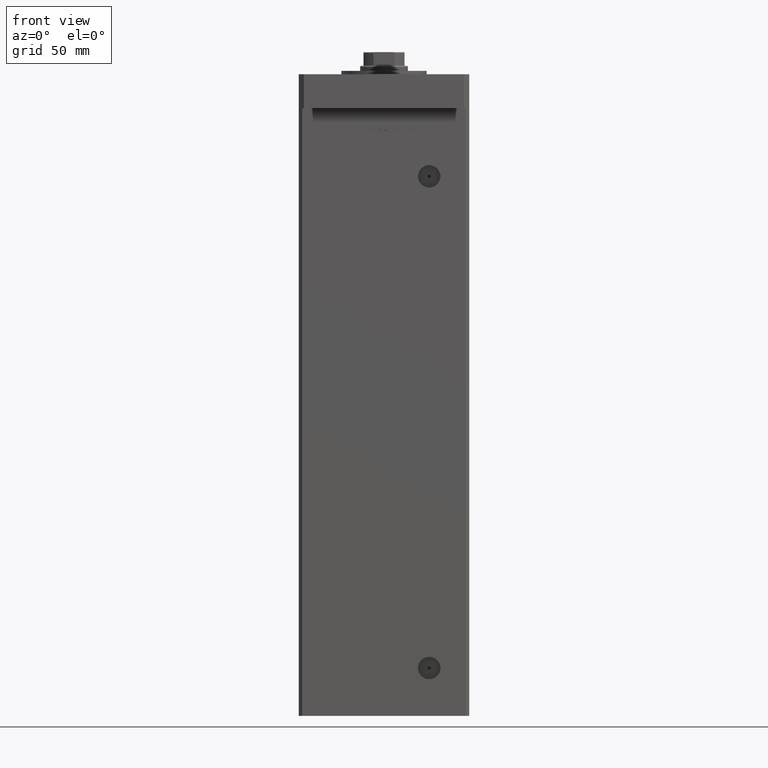
[diagram: clean part render]
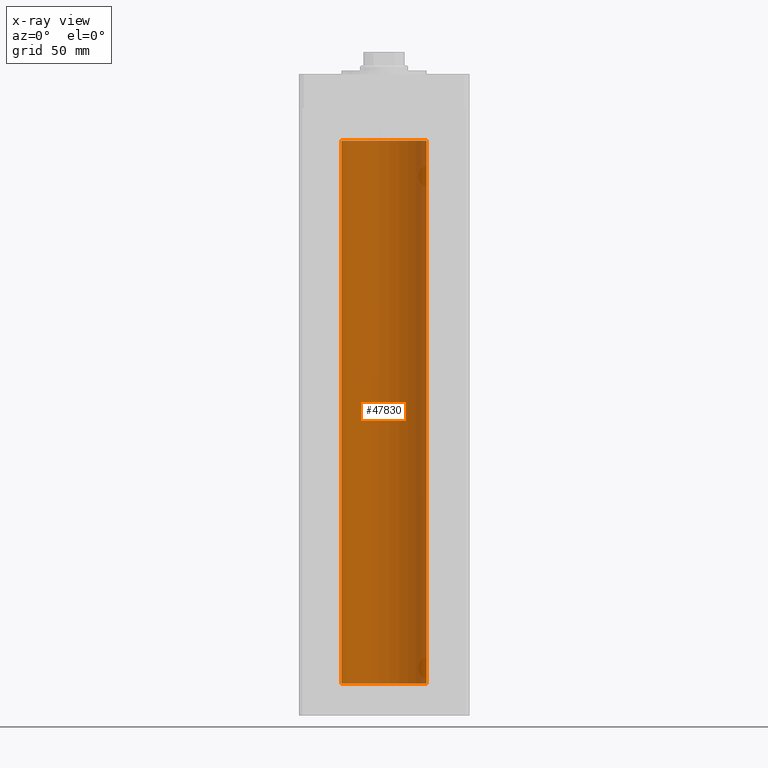
[diagram: x-ray — body ghosted, one internal face saturated and labeled with its STEP entity id]
A machine part, front view, then the same camera in x-ray: the body is ghosted and one INTERNAL B-rep face — a face not visible from any outside direction — is saturated and labeled: STEP entity #47830.
In plain terms, the highlighted cylindrical surface (partial cylindrical patch) has radius 25 mm, axis along (-0, -0, -1).
Its self-contained STEP definition (entity closure, byte-faithful):
#875 = AXIS2_PLACEMENT_3D ( 'NONE', #46854, #22018, #9456 ) ;
#1952 = EDGE_CURVE ( 'NONE', #30899, #21085, #11212, .T. ) ;
#2509 = DIRECTION ( 'NONE',  ( -0.000000000000000000, -0.000000000000000000, -1.000000000000000000 ) ) ;
#3196 = CYLINDRICAL_SURFACE ( 'NONE', #8703, 25.00000000000000000 ) ;
#3530 = EDGE_LOOP ( 'NONE', ( #19201, #32062, #41451, #8768 ) ) ;
#6261 = DIRECTION ( 'NONE',  ( -0.000000000000000000, 0.000000000000000000, 1.000000000000000000 ) ) ;
#8703 = AXIS2_PLACEMENT_3D ( 'NONE', #36493, #53111, #52053 ) ;
#8768 = ORIENTED_EDGE ( 'NONE', *, *, #51447, .F. ) ;
#9456 = DIRECTION ( 'NONE',  ( 1.000000000000000000, 0.000000000000000000, 0.000000000000000000 ) ) ;
#9716 = AXIS2_PLACEMENT_3D ( 'NONE', #29573, #6261, #43120 ) ;
#10712 = CARTESIAN_POINT ( 'NONE',  ( -25.00000000000000000, 0.000000000000000000, 318.5000000000000000 ) ) ;
#11212 = LINE ( 'NONE', #32772, #31901 ) ;
#14946 = FACE_OUTER_BOUND ( 'NONE', #3530, .T. ) ;
#17822 = VERTEX_POINT ( 'NONE', #10712 ) ;
#18710 = CARTESIAN_POINT ( 'NONE',  ( 25.00000000000000000, 3.061616997868383043E-15, 0.000000000000000000 ) ) ;
#19201 = ORIENTED_EDGE ( 'NONE', *, *, #1952, .F. ) ;
#21085 = VERTEX_POINT ( 'NONE', #18710 ) ;
#21222 = CARTESIAN_POINT ( 'NONE',  ( -25.00000000000000000, 0.000000000000000000, 318.5000000000000000 ) ) ;
#22018 = DIRECTION ( 'NONE',  ( -0.000000000000000000, 0.000000000000000000, 1.000000000000000000 ) ) ;
#23919 = CARTESIAN_POINT ( 'NONE',  ( -25.00000000000000000, 0.000000000000000000, 0.000000000000000000 ) ) ;
#26727 = CARTESIAN_POINT ( 'NONE',  ( 25.00000000000000000, 3.061616997868383043E-15, 318.5000000000000000 ) ) ;
#27833 = VERTEX_POINT ( 'NONE', #23919 ) ;
#29573 = CARTESIAN_POINT ( 'NONE',  ( 0.000000000000000000, 0.000000000000000000, 0.000000000000000000 ) ) ;
#30899 = VERTEX_POINT ( 'NONE', #26727 ) ;
#31901 = VECTOR ( 'NONE', #2509, 1000.000000000000000 ) ;
#32062 = ORIENTED_EDGE ( 'NONE', *, *, #45135, .T. ) ;
#32772 = CARTESIAN_POINT ( 'NONE',  ( 25.00000000000000000, 3.061616997868383043E-15, 318.5000000000000000 ) ) ;
#32882 = VECTOR ( 'NONE', #46603, 1000.000000000000000 ) ;
#33253 = CIRCLE ( 'NONE', #9716, 25.00000000000000000 ) ;
#34226 = EDGE_CURVE ( 'NONE', #17822, #27833, #46874, .T. ) ;
#36493 = CARTESIAN_POINT ( 'NONE',  ( 0.000000000000000000, 0.000000000000000000, 318.5000000000000000 ) ) ;
#40072 = CIRCLE ( 'NONE', #875, 25.00000000000000000 ) ;
#41451 = ORIENTED_EDGE ( 'NONE', *, *, #34226, .T. ) ;
#43120 = DIRECTION ( 'NONE',  ( 1.000000000000000000, 0.000000000000000000, 0.000000000000000000 ) ) ;
#45135 = EDGE_CURVE ( 'NONE', #30899, #17822, #40072, .T. ) ;
#46603 = DIRECTION ( 'NONE',  ( -0.000000000000000000, -0.000000000000000000, -1.000000000000000000 ) ) ;
#46854 = CARTESIAN_POINT ( 'NONE',  ( 0.000000000000000000, 0.000000000000000000, 318.5000000000000000 ) ) ;
#46874 = LINE ( 'NONE', #21222, #32882 ) ;
#47830 = ADVANCED_FACE ( 'NONE', ( #14946 ), #3196, .F. ) ;
#51447 = EDGE_CURVE ( 'NONE', #21085, #27833, #33253, .T. ) ;
#52053 = DIRECTION ( 'NONE',  ( -1.000000000000000000, 0.000000000000000000, 0.000000000000000000 ) ) ;
#53111 = DIRECTION ( 'NONE',  ( -0.000000000000000000, -0.000000000000000000, -1.000000000000000000 ) ) ;